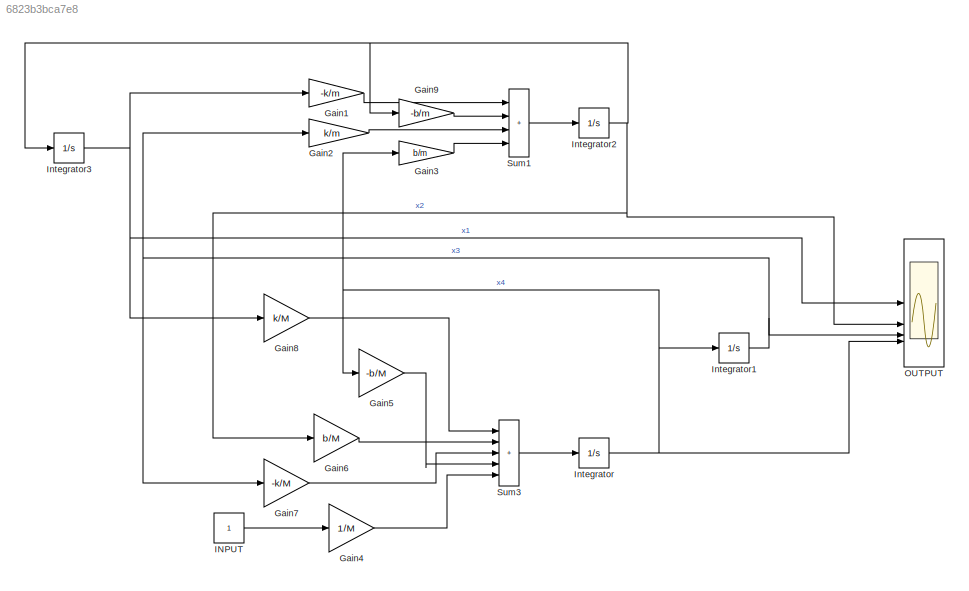
MODEL slx_6823b3bca7e8
KIND model
CONFIG AbsTol = auto
CONFIG EnableMultiTasking = off
CONFIG FixedStep = auto
CONFIG MaxStep = auto
CONFIG MinStep = auto
CONFIG RelTol = 1e-3
CONFIG SampleTimeConstraint = Unconstrained
CONFIG SolverName = VariableStepAuto
CONFIG StartTime = 0.0
CONFIG StopTime = 10.0
WORKSPACE source: mxarray member
WORKSPACE K = 1
WORKSPACE M = 2
WORKSPACE b = 1
WORKSPACE k = 1
WORKSPACE m = 1
BLOCK [Gain] Gain1
  Gain = -k/m
  NameLocation = top
BLOCK [Gain] Gain2
  Gain = k/m
  NameLocation = top
BLOCK [Gain] Gain3
  Gain = b/m
  NameLocation = top
BLOCK [Gain] Gain4
  Gain = 1/M
  NameLocation = top
BLOCK [Gain] Gain5
  Gain = -b/M
  NameLocation = top
BLOCK [Gain] Gain6
  Gain = b/M
  NameLocation = top
BLOCK [Gain] Gain7
  Gain = -k/M
  NameLocation = top
BLOCK [Gain] Gain8
  Gain = k/M
  NameLocation = top
BLOCK [Gain] Gain9
  Gain = -b/m
  NameLocation = top
BLOCK [Constant] INPUT
BLOCK [Integrator] Integrator
BLOCK [Integrator] Integrator1
BLOCK [Integrator] Integrator2
BLOCK [Integrator] Integrator3
BLOCK [Scope] OUTPUT
  Floating = off
  NumInputPorts = 4
  ScopeSpecificationString = Simulink.scopes.TimeScopeBlockCfg('CurrentConfiguration', extmgr.ConfigurationSet(extmgr.Configuration('Core','General UI',true),extmgr.Configuration('Core','Source UI',true),extmgr.Configuration('Sources','WiredSimulink',true,'DataLoggingVariableName','ScopeData2'),extmgr.Configuration('Visuals','Time Domain',true,'SerializedDisplays',{struct('MinYLimReal','-2.09723','MaxYLimReal','18.87508','YLa...<+3492ch>
BLOCK [Sum] Sum1
  IconShape = rectangular
  Inputs = +|+|+|+
BLOCK [Sum] Sum3
  IconShape = rectangular
  Inputs = +++++
LINE Gain1:1 -> Sum1:1
LINE Gain2:1 -> Sum1:3
LINE Gain3:1 -> Sum1:4
LINE Gain4:1 -> Sum3:5
LINE Gain5:1 -> Sum3:4
LINE Gain6:1 -> Sum3:2
LINE Gain7:1 -> Sum3:3
LINE Gain8:1 -> Sum3:1
LINE Gain9:1 -> Sum1:2
LINE INPUT:1 -> Gain4:1
NET Integrator1:1 -> Gain2:1, Gain7:1, OUTPUT:3
NET Integrator2:1 -> Gain6:1, Gain9:1, Integrator3:1, OUTPUT:2
NET Integrator3:1 -> Gain1:1, Gain8:1, OUTPUT:1
NET Integrator:1 -> Gain3:1, Gain5:1, Integrator1:1, OUTPUT:4
LINE Sum1:1 -> Integrator2:1
LINE Sum3:1 -> Integrator:1
note: NET lines group one-source signal fan-out (src -> all destinations, sorted); 1:1 wires keep LINE
